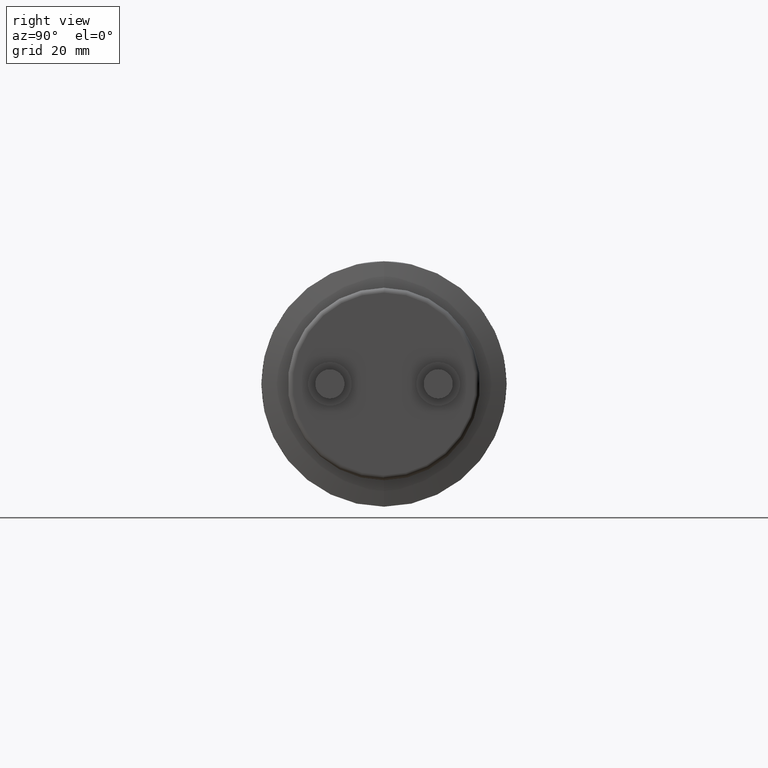
[diagram: clean part render]
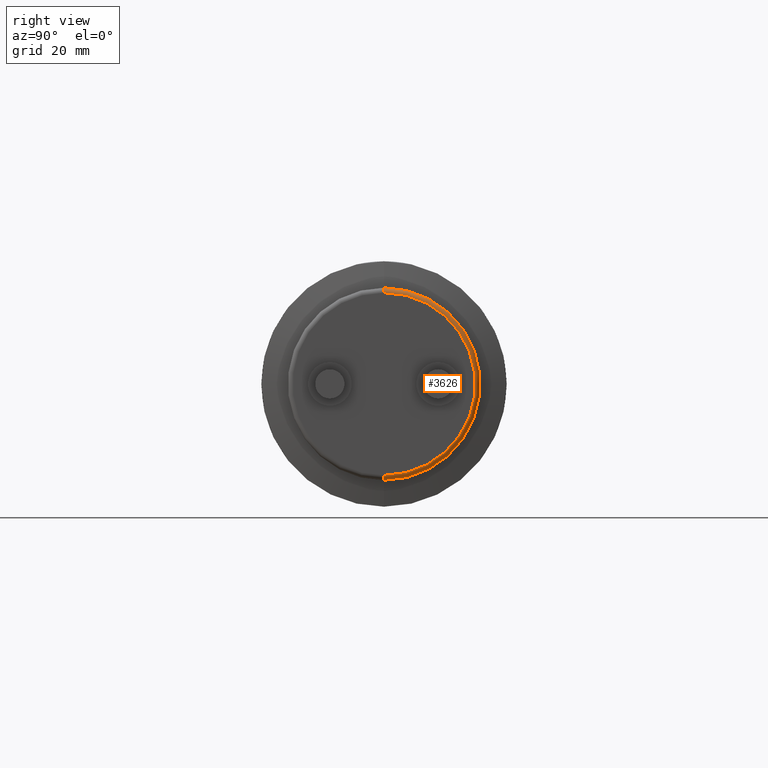
[diagram: same view with one face highlighted and labeled with its STEP entity id]
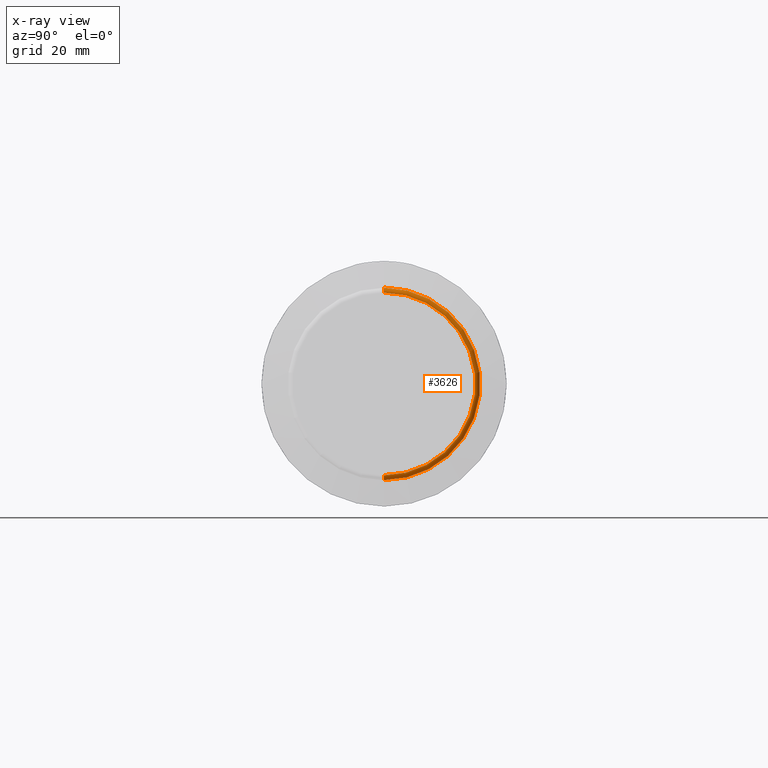
[diagram: x-ray of the same camera — body ghosted, the highlighted face saturated]
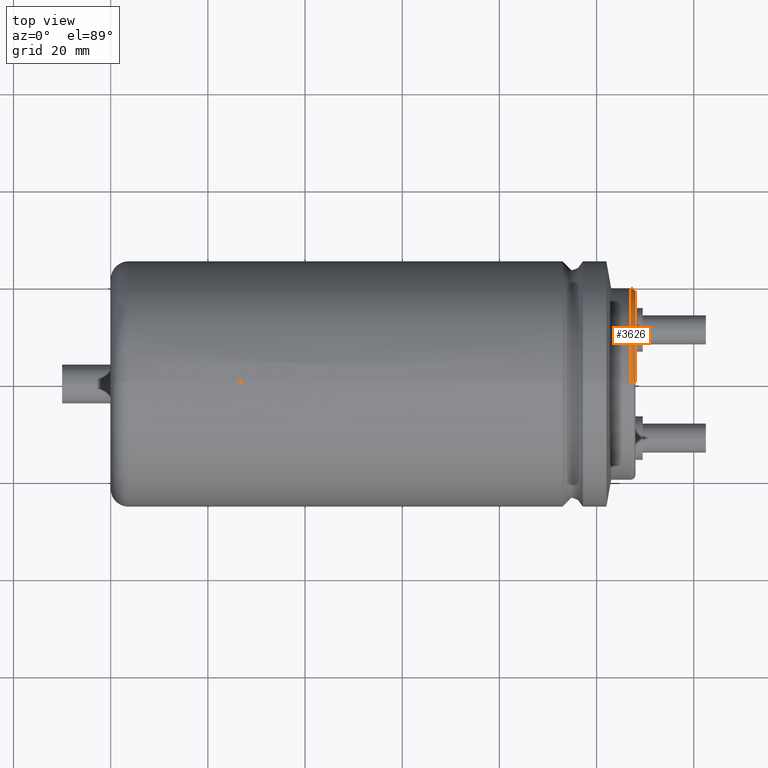
[diagram: same view with one face highlighted and labeled with its STEP entity id]
A machine part, right view. The second image highlights one B-rep face of the part: STEP entity #3626.
The next image is the same camera in x-ray: the body ghosted, the highlighted face saturated — about 0% of this face is hidden behind the body in this view.
A second angle (top view) of the same face is appended — the face is thin or edge-on in the first view.
In plain terms, the highlighted toroidal blend (fillet) surface has major radius 18.8036 mm and minor (blend) radius 1 mm.
Its self-contained STEP definition (entity closure, byte-faithful):
#12 = EDGE_CURVE ( 'NONE', #127, #3370, #3085, .T. ) ;
#84 = DIRECTION ( 'NONE',  ( 0.0000000000000000000, 1.224646799147353500E-016, 1.000000000000000000 ) ) ;
#127 = VERTEX_POINT ( 'NONE', #4015 ) ;
#482 = FACE_OUTER_BOUND ( 'NONE', #3277, .T. ) ;
#514 = CARTESIAN_POINT ( 'NONE',  ( 107.0000000000000000, 0.0000000000000000000, -18.80357499999999500 ) ) ;
#659 = CARTESIAN_POINT ( 'NONE',  ( 107.0000000000000000, 2.302773793627718700E-015, 18.80357499999999500 ) ) ;
#694 = ORIENTED_EDGE ( 'NONE', *, *, #3054, .F. ) ;
#757 = VERTEX_POINT ( 'NONE', #2216 ) ;
#869 = AXIS2_PLACEMENT_3D ( 'NONE', #1483, #2387, #3963 ) ;
#898 = CIRCLE ( 'NONE', #3468, 1.000000000000000900 ) ;
#1219 = DIRECTION ( 'NONE',  ( -1.000000000000000000, -0.0000000000000000000, -0.0000000000000000000 ) ) ;
#1242 = CARTESIAN_POINT ( 'NONE',  ( 107.0000000000000000, 0.0000000000000000000, 0.0000000000000000000 ) ) ;
#1460 = DIRECTION ( 'NONE',  ( 0.0000000000000000000, -1.000000000000000000, 0.0000000000000000000 ) ) ;
#1483 = CARTESIAN_POINT ( 'NONE',  ( 108.0000000000000000, 0.0000000000000000000, 0.0000000000000000000 ) ) ;
#2053 = CIRCLE ( 'NONE', #3239, 19.80357499999999900 ) ;
#2123 = CARTESIAN_POINT ( 'NONE',  ( 108.0000000000000000, 2.364006133585086300E-015, 18.80357499999999500 ) ) ;
#2216 = CARTESIAN_POINT ( 'NONE',  ( 107.0000000000000000, 0.0000000000000000000, 19.80357499999999900 ) ) ;
#2271 = CARTESIAN_POINT ( 'NONE',  ( 107.0000000000000000, 0.0000000000000000000, 0.0000000000000000000 ) ) ;
#2283 = CARTESIAN_POINT ( 'NONE',  ( 107.0000000000000000, 2.425238473542454300E-015, -19.80357499999999900 ) ) ;
#2387 = DIRECTION ( 'NONE',  ( 1.000000000000000000, 0.0000000000000000000, 0.0000000000000000000 ) ) ;
#2455 = EDGE_CURVE ( 'NONE', #757, #3370, #898, .T. ) ;
#2598 = DIRECTION ( 'NONE',  ( 1.000000000000000000, 0.0000000000000000000, 0.0000000000000000000 ) ) ;
#2773 = AXIS2_PLACEMENT_3D ( 'NONE', #514, #1460, #3636 ) ;
#2809 = AXIS2_PLACEMENT_3D ( 'NONE', #2271, #2598, #2863 ) ;
#2863 = DIRECTION ( 'NONE',  ( 0.0000000000000000000, 0.0000000000000000000, -1.000000000000000000 ) ) ;
#3054 = EDGE_CURVE ( 'NONE', #757, #3759, #2053, .T. ) ;
#3085 = CIRCLE ( 'NONE', #869, 18.80357499999999500 ) ;
#3119 = ORIENTED_EDGE ( 'NONE', *, *, #12, .F. ) ;
#3154 = ORIENTED_EDGE ( 'NONE', *, *, #3268, .F. ) ;
#3175 = TOROIDAL_SURFACE ( 'NONE', #2809, 18.80357499999999500, 1.000000000000000000 ) ;
#3239 = AXIS2_PLACEMENT_3D ( 'NONE', #1242, #1219, #3406 ) ;
#3268 = EDGE_CURVE ( 'NONE', #3759, #127, #3692, .T. ) ;
#3277 = EDGE_LOOP ( 'NONE', ( #694, #3833, #3119, #3154 ) ) ;
#3370 = VERTEX_POINT ( 'NONE', #2123 ) ;
#3406 = DIRECTION ( 'NONE',  ( 0.0000000000000000000, 0.0000000000000000000, -1.000000000000000000 ) ) ;
#3468 = AXIS2_PLACEMENT_3D ( 'NONE', #659, #3484, #84 ) ;
#3484 = DIRECTION ( 'NONE',  ( 0.0000000000000000000, 1.000000000000000000, -1.224646799147353200E-016 ) ) ;
#3626 = ADVANCED_FACE ( 'NONE', ( #482 ), #3175, .T. ) ;
#3636 = DIRECTION ( 'NONE',  ( 0.0000000000000000000, 0.0000000000000000000, -1.000000000000000000 ) ) ;
#3692 = CIRCLE ( 'NONE', #2773, 1.000000000000000900 ) ;
#3759 = VERTEX_POINT ( 'NONE', #2283 ) ;
#3833 = ORIENTED_EDGE ( 'NONE', *, *, #2455, .T. ) ;
#3963 = DIRECTION ( 'NONE',  ( 0.0000000000000000000, 0.0000000000000000000, -1.000000000000000000 ) ) ;
#4015 = CARTESIAN_POINT ( 'NONE',  ( 108.0000000000000000, 0.0000000000000000000, -18.80357499999999500 ) ) ;